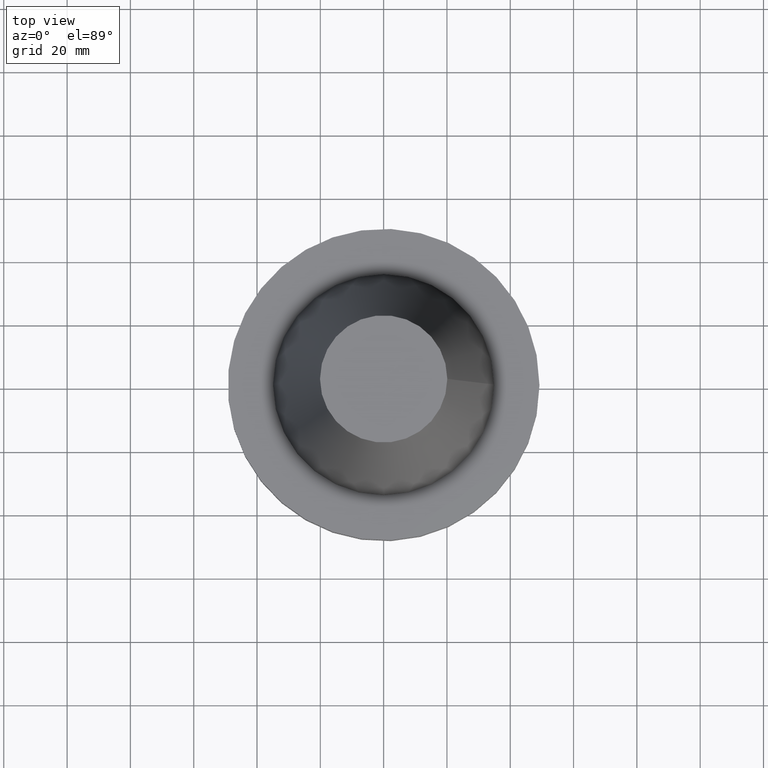
[diagram: clean part render]
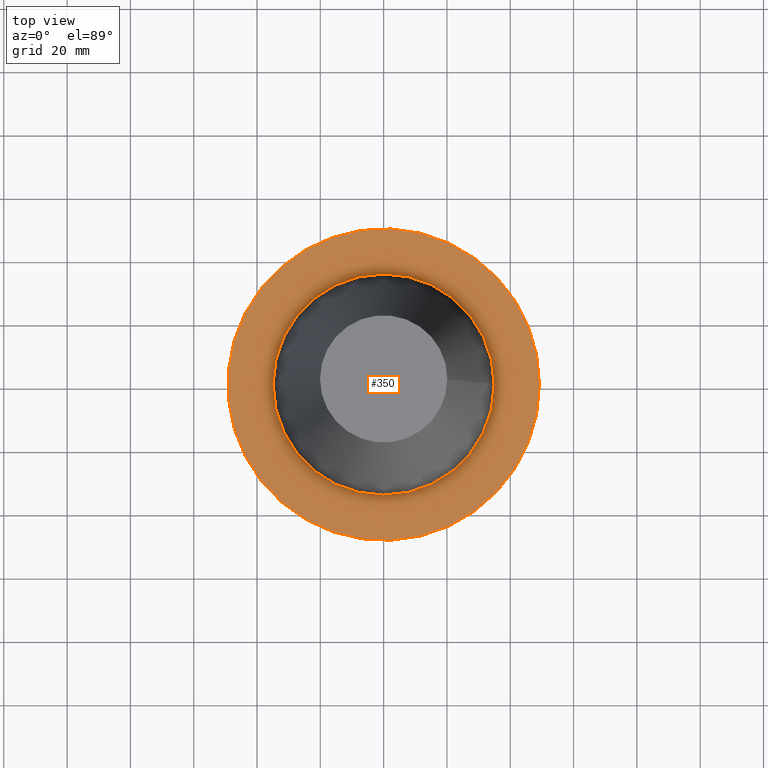
[diagram: same view with one face highlighted and labeled with its STEP entity id]
A machine part, top view. The second image highlights one B-rep face of the part: STEP entity #350.
In plain terms, the highlighted planar face has unit normal (0, 0, -1).
Its self-contained STEP definition (entity closure, byte-faithful):
#3 = CARTESIAN_POINT ( 'NONE',  ( 49.21499999999999631, 0.000000000000000000, -1.499999999999987566 ) ) ;
#4 = EDGE_LOOP ( 'NONE', ( #29 ) ) ;
#23 = ORIENTED_EDGE ( 'NONE', *, *, #223, .F. ) ;
#29 = ORIENTED_EDGE ( 'NONE', *, *, #345, .T. ) ;
#65 = EDGE_LOOP ( 'NONE', ( #23 ) ) ;
#102 = DIRECTION ( 'NONE',  ( -0.000000000000000000, -0.000000000000000000, 1.000000000000000000 ) ) ;
#105 = CARTESIAN_POINT ( 'NONE',  ( 34.92499999999999005, 0.000000000000000000, -1.499999999999987566 ) ) ;
#107 = CARTESIAN_POINT ( 'NONE',  ( 0.000000000000000000, 0.000000000000000000, -1.499999999999987566 ) ) ;
#132 = AXIS2_PLACEMENT_3D ( 'NONE', #248, #102, #224 ) ;
#137 = DIRECTION ( 'NONE',  ( -0.000000000000000000, -0.000000000000000000, 1.000000000000000000 ) ) ;
#143 = CARTESIAN_POINT ( 'NONE',  ( 0.000000000000000000, 49.21499999999999631, -1.499999999999992895 ) ) ;
#177 = FACE_BOUND ( 'NONE', #65, .T. ) ;
#200 = DIRECTION ( 'NONE',  ( 0.000000000000000000, 0.000000000000000000, -1.000000000000000000 ) ) ;
#223 = EDGE_CURVE ( 'NONE', #252, #252, #369, .T. ) ;
#224 = DIRECTION ( 'NONE',  ( 1.000000000000000000, 0.000000000000000000, 0.000000000000000000 ) ) ;
#248 = CARTESIAN_POINT ( 'NONE',  ( 0.000000000000000000, 0.000000000000000000, -1.499999999999987566 ) ) ;
#252 = VERTEX_POINT ( 'NONE', #105 ) ;
#281 = VERTEX_POINT ( 'NONE', #3 ) ;
#290 = DIRECTION ( 'NONE',  ( -1.000000000000000000, 0.000000000000000000, -0.000000000000000000 ) ) ;
#298 = PLANE ( 'NONE',  #301 ) ;
#301 = AXIS2_PLACEMENT_3D ( 'NONE', #143, #200, #290 ) ;
#305 = CIRCLE ( 'NONE', #315, 49.21499999999999631 ) ;
#315 = AXIS2_PLACEMENT_3D ( 'NONE', #107, #137, #323 ) ;
#319 = FACE_OUTER_BOUND ( 'NONE', #4, .T. ) ;
#323 = DIRECTION ( 'NONE',  ( 1.000000000000000000, 0.000000000000000000, 0.000000000000000000 ) ) ;
#345 = EDGE_CURVE ( 'NONE', #281, #281, #305, .T. ) ;
#350 = ADVANCED_FACE ( 'NONE', ( #177, #319 ), #298, .F. ) ;
#369 = CIRCLE ( 'NONE', #132, 34.92499999999999005 ) ;